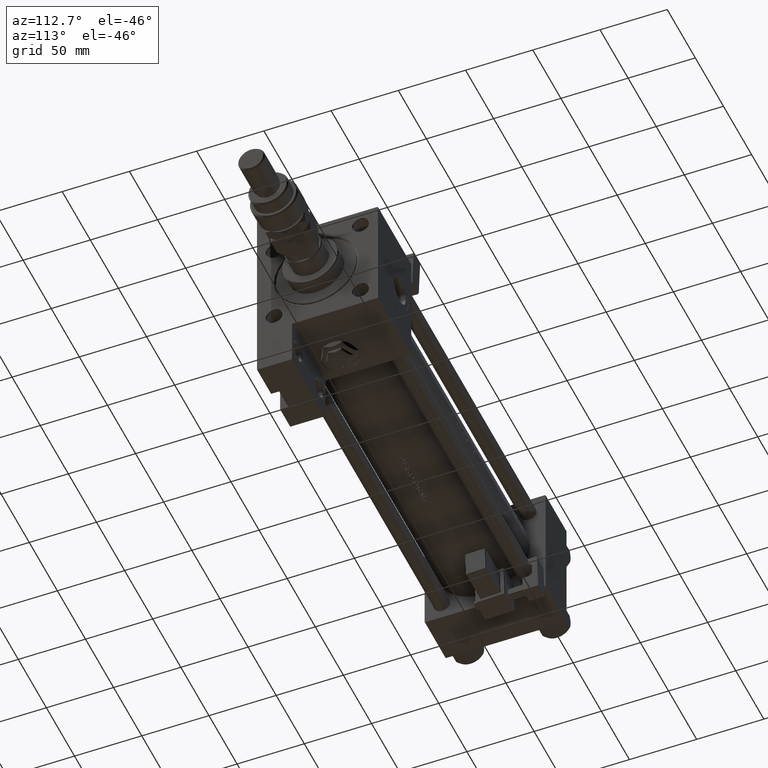
[diagram: clean part render]
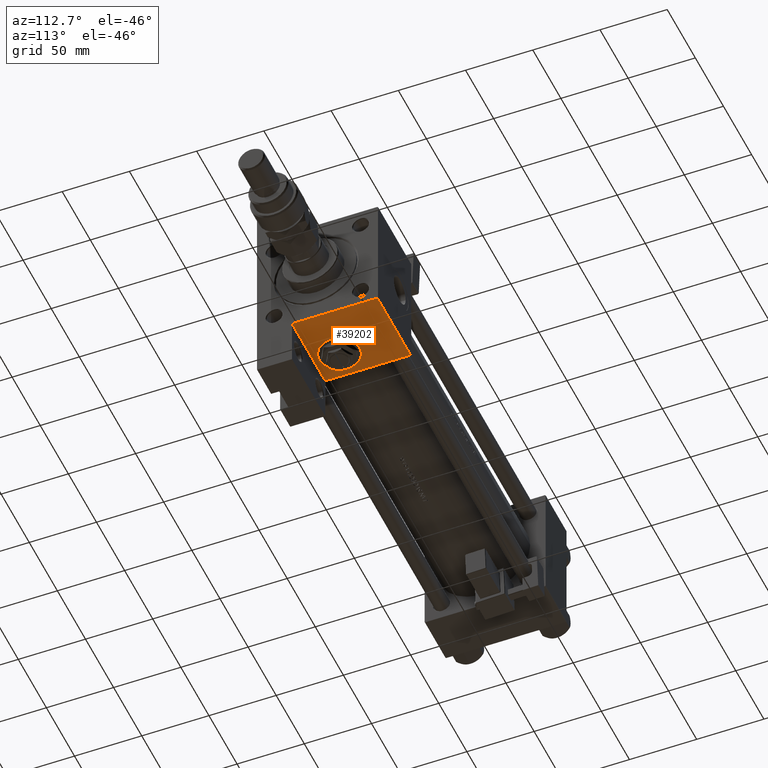
[diagram: same view with one face highlighted and labeled with its STEP entity id]
A machine part, auxiliary view. The second image highlights one B-rep face of the part: STEP entity #39202.
In plain terms, the highlighted planar face has unit normal (0, 0, -1).
Its self-contained STEP definition (entity closure, byte-faithful):
#296 = AXIS2_PLACEMENT_3D ( 'NONE', #22194, #47525, #38998 ) ;
#595 = CIRCLE ( 'NONE', #40979, 15.00000000000002487 ) ;
#1334 = ORIENTED_EDGE ( 'NONE', *, *, #46411, .T. ) ;
#3516 = VECTOR ( 'NONE', #32027, 1000.000000000000000 ) ;
#4334 = ORIENTED_EDGE ( 'NONE', *, *, #29197, .T. ) ;
#4392 = ORIENTED_EDGE ( 'NONE', *, *, #13497, .F. ) ;
#4617 = LINE ( 'NONE', #25080, #37417 ) ;
#5348 = PLANE ( 'NONE',  #296 ) ;
#6160 = DIRECTION ( 'NONE',  ( 1.000000000000000000, 0.000000000000000000, 0.000000000000000000 ) ) ;
#7021 = DIRECTION ( 'NONE',  ( 0.000000000000000000, 1.000000000000000000, 0.000000000000000000 ) ) ;
#7456 = CARTESIAN_POINT ( 'NONE',  ( 334.9999999999999432, 45.00000000000001421, 44.50000000000000000 ) ) ;
#8287 = DIRECTION ( 'NONE',  ( -1.000000000000000000, 1.411300455031978640E-15, -0.000000000000000000 ) ) ;
#11015 = CARTESIAN_POINT ( 'NONE',  ( 275.9999999999999432, 45.00000000000001421, 44.50000000000000000 ) ) ;
#12808 = CARTESIAN_POINT ( 'NONE',  ( 296.0000000000000000, 45.00000000000001421, 15.00000000000002487 ) ) ;
#13497 = EDGE_CURVE ( 'NONE', #20446, #19137, #28561, .T. ) ;
#13636 = ORIENTED_EDGE ( 'NONE', *, *, #18450, .F. ) ;
#15188 = LINE ( 'NONE', #48535, #3516 ) ;
#15532 = VECTOR ( 'NONE', #8287, 1000.000000000000000 ) ;
#16032 = CARTESIAN_POINT ( 'NONE',  ( 296.0000000000000000, 45.00000000000001421, 0.000000000000000000 ) ) ;
#16541 = LINE ( 'NONE', #7456, #39585 ) ;
#18450 = EDGE_CURVE ( 'NONE', #19137, #20446, #595, .T. ) ;
#19137 = VERTEX_POINT ( 'NONE', #21691 ) ;
#19958 = CARTESIAN_POINT ( 'NONE',  ( 334.9999999999999432, 45.00000000000001421, 44.50000000000000000 ) ) ;
#20394 = ORIENTED_EDGE ( 'NONE', *, *, #43518, .F. ) ;
#20446 = VERTEX_POINT ( 'NONE', #12808 ) ;
#21691 = CARTESIAN_POINT ( 'NONE',  ( 296.0000000000000000, 45.00000000000001421, -15.00000000000002487 ) ) ;
#22194 = CARTESIAN_POINT ( 'NONE',  ( 334.9999999999999432, 45.00000000000001421, 45.00000000000000000 ) ) ;
#22601 = VERTEX_POINT ( 'NONE', #11015 ) ;
#24553 = ORIENTED_EDGE ( 'NONE', *, *, #28280, .T. ) ;
#24610 = DIRECTION ( 'NONE',  ( 0.000000000000000000, 0.000000000000000000, 1.000000000000000000 ) ) ;
#25080 = CARTESIAN_POINT ( 'NONE',  ( 275.9999999999999432, 45.00000000000001421, 45.00000000000000000 ) ) ;
#28009 = EDGE_LOOP ( 'NONE', ( #4392, #13636 ) ) ;
#28280 = EDGE_CURVE ( 'NONE', #22601, #35086, #16541, .T. ) ;
#28544 = DIRECTION ( 'NONE',  ( 0.000000000000000000, 0.000000000000000000, 1.000000000000000000 ) ) ;
#28561 = CIRCLE ( 'NONE', #37320, 15.00000000000002487 ) ;
#29197 = EDGE_CURVE ( 'NONE', #35086, #39604, #15188, .T. ) ;
#29274 = CARTESIAN_POINT ( 'NONE',  ( 275.9999999999999432, 45.00000000000001421, -19.00000000000000000 ) ) ;
#32027 = DIRECTION ( 'NONE',  ( 0.000000000000000000, 0.000000000000000000, -1.000000000000000000 ) ) ;
#32853 = EDGE_LOOP ( 'NONE', ( #20394, #24553, #4334, #1334 ) ) ;
#34886 = VERTEX_POINT ( 'NONE', #47524 ) ;
#35086 = VERTEX_POINT ( 'NONE', #19958 ) ;
#37320 = AXIS2_PLACEMENT_3D ( 'NONE', #44787, #7021, #28544 ) ;
#37417 = VECTOR ( 'NONE', #42961, 1000.000000000000000 ) ;
#38731 = FACE_OUTER_BOUND ( 'NONE', #32853, .T. ) ;
#38998 = DIRECTION ( 'NONE',  ( 0.000000000000000000, -0.000000000000000000, 1.000000000000000000 ) ) ;
#39202 = ADVANCED_FACE ( 'NONE', ( #52181, #38731 ), #5348, .T. ) ;
#39585 = VECTOR ( 'NONE', #6160, 1000.000000000000000 ) ;
#39604 = VERTEX_POINT ( 'NONE', #53472 ) ;
#40979 = AXIS2_PLACEMENT_3D ( 'NONE', #16032, #41137, #24610 ) ;
#41137 = DIRECTION ( 'NONE',  ( 0.000000000000000000, 1.000000000000000000, 0.000000000000000000 ) ) ;
#42961 = DIRECTION ( 'NONE',  ( 0.000000000000000000, 0.000000000000000000, -1.000000000000000000 ) ) ;
#43518 = EDGE_CURVE ( 'NONE', #22601, #34886, #4617, .T. ) ;
#44787 = CARTESIAN_POINT ( 'NONE',  ( 296.0000000000000000, 45.00000000000001421, 0.000000000000000000 ) ) ;
#46411 = EDGE_CURVE ( 'NONE', #39604, #34886, #54023, .T. ) ;
#47524 = CARTESIAN_POINT ( 'NONE',  ( 275.9999999999999432, 45.00000000000001421, -18.99999999999997513 ) ) ;
#47525 = DIRECTION ( 'NONE',  ( -0.000000000000000000, 1.000000000000000000, 0.000000000000000000 ) ) ;
#48535 = CARTESIAN_POINT ( 'NONE',  ( 334.9999999999999432, 45.00000000000001421, 45.00000000000000000 ) ) ;
#52181 = FACE_BOUND ( 'NONE', #28009, .T. ) ;
#53472 = CARTESIAN_POINT ( 'NONE',  ( 334.9999999999999432, 44.99999999999992895, -19.00000000000000000 ) ) ;
#54023 = LINE ( 'NONE', #29274, #15532 ) ;